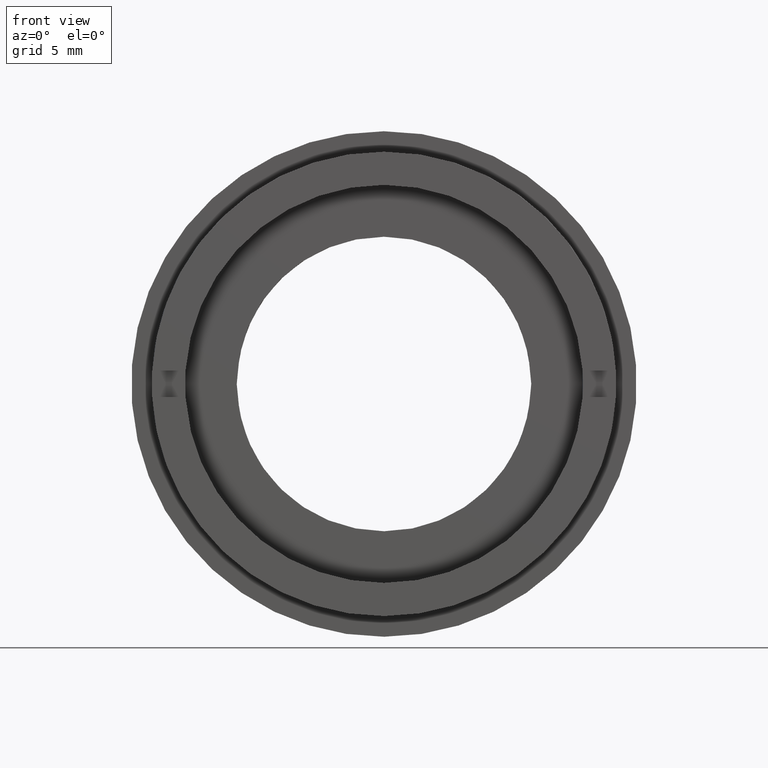
[diagram: clean part render]
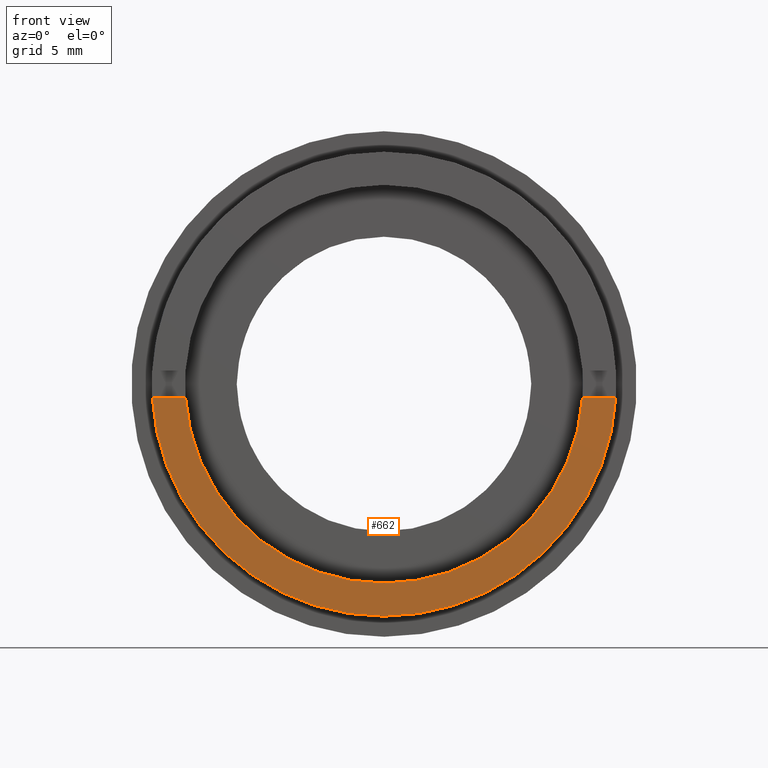
[diagram: same view with one face highlighted and labeled with its STEP entity id]
A machine part, front view. The second image highlights one B-rep face of the part: STEP entity #662.
In plain terms, the highlighted planar face has unit normal (0, -1, 0).
Its self-contained STEP definition (entity closure, byte-faithful):
#12 = VERTEX_POINT ( 'NONE', #230 ) ;
#43 = CARTESIAN_POINT ( 'NONE',  ( 0.0000000000000000000, 0.0000000000000000000, 0.0000000000000000000 ) ) ;
#60 = ORIENTED_EDGE ( 'NONE', *, *, #1094, .T. ) ;
#65 = DIRECTION ( 'NONE',  ( 0.0000000000000000000, 0.0000000000000000000, 1.000000000000000000 ) ) ;
#67 = DIRECTION ( 'NONE',  ( -0.0000000000000000000, 1.000000000000000000, -0.0000000000000000000 ) ) ;
#100 = EDGE_CURVE ( 'NONE', #502, #1331, #1271, .T. ) ;
#166 = DIRECTION ( 'NONE',  ( 1.000000000000000000, 0.0000000000000000000, 0.0000000000000000000 ) ) ;
#185 = AXIS2_PLACEMENT_3D ( 'NONE', #715, #913, #693 ) ;
#198 = CARTESIAN_POINT ( 'NONE',  ( 2.143131898507867900E-015, 0.0000000000000000000, -17.49999999999999600 ) ) ;
#211 = CIRCLE ( 'NONE', #185, 14.99999999999999600 ) ;
#230 = CARTESIAN_POINT ( 'NONE',  ( 14.96662954709576000, 0.0000000000000000000, -0.9999999999999943400 ) ) ;
#232 = ORIENTED_EDGE ( 'NONE', *, *, #893, .F. ) ;
#280 = DIRECTION ( 'NONE',  ( 0.0000000000000000000, -0.0000000000000000000, -1.000000000000000000 ) ) ;
#293 = FACE_OUTER_BOUND ( 'NONE', #791, .T. ) ;
#301 = DIRECTION ( 'NONE',  ( 0.0000000000000000000, -1.000000000000000000, 0.0000000000000000000 ) ) ;
#305 = AXIS2_PLACEMENT_3D ( 'NONE', #997, #919, #446 ) ;
#324 = CARTESIAN_POINT ( 'NONE',  ( -17.49999999999999600, 0.0000000000000000000, 0.0000000000000000000 ) ) ;
#336 = CARTESIAN_POINT ( 'NONE',  ( 1.836970198721029200E-015, 0.0000000000000000000, -14.99999999999999600 ) ) ;
#363 = CARTESIAN_POINT ( 'NONE',  ( 17.47140520965614400, 0.0000000000000000000, -1.000000000000000000 ) ) ;
#380 = CIRCLE ( 'NONE', #305, 17.49999999999999600 ) ;
#400 = PLANE ( 'NONE',  #1213 ) ;
#419 = ORIENTED_EDGE ( 'NONE', *, *, #852, .T. ) ;
#446 = DIRECTION ( 'NONE',  ( 0.0000000000000000000, 0.0000000000000000000, 1.000000000000000000 ) ) ;
#447 = CARTESIAN_POINT ( 'NONE',  ( -14.96662954709576400, 0.0000000000000000000, -0.9999999999999945600 ) ) ;
#502 = VERTEX_POINT ( 'NONE', #666 ) ;
#509 = ORIENTED_EDGE ( 'NONE', *, *, #613, .F. ) ;
#612 = CARTESIAN_POINT ( 'NONE',  ( -17.49999999999999600, 0.0000000000000000000, -1.000000000000000000 ) ) ;
#613 = EDGE_CURVE ( 'NONE', #659, #1284, #685, .T. ) ;
#630 = AXIS2_PLACEMENT_3D ( 'NONE', #43, #67, #65 ) ;
#659 = VERTEX_POINT ( 'NONE', #363 ) ;
#662 = ADVANCED_FACE ( 'NONE', ( #293 ), #400, .T. ) ;
#666 = CARTESIAN_POINT ( 'NONE',  ( -17.47140520965614400, 0.0000000000000000000, -1.000000000000000000 ) ) ;
#685 = CIRCLE ( 'NONE', #630, 17.49999999999999600 ) ;
#693 = DIRECTION ( 'NONE',  ( 0.0000000000000000000, 0.0000000000000000000, 1.000000000000000000 ) ) ;
#711 = VECTOR ( 'NONE', #1225, 1000.000000000000000 ) ;
#715 = CARTESIAN_POINT ( 'NONE',  ( 0.0000000000000000000, 0.0000000000000000000, 0.0000000000000000000 ) ) ;
#718 = AXIS2_PLACEMENT_3D ( 'NONE', #1315, #1170, #1090 ) ;
#775 = CARTESIAN_POINT ( 'NONE',  ( -17.49999999999999600, 0.0000000000000000000, -1.000000000000000000 ) ) ;
#786 = CIRCLE ( 'NONE', #718, 14.99999999999999600 ) ;
#787 = LINE ( 'NONE', #612, #711 ) ;
#791 = EDGE_LOOP ( 'NONE', ( #901, #232, #509, #972, #60, #419 ) ) ;
#802 = EDGE_CURVE ( 'NONE', #12, #659, #787, .T. ) ;
#852 = EDGE_CURVE ( 'NONE', #1186, #1331, #786, .T. ) ;
#893 = EDGE_CURVE ( 'NONE', #1284, #502, #380, .T. ) ;
#901 = ORIENTED_EDGE ( 'NONE', *, *, #100, .F. ) ;
#913 = DIRECTION ( 'NONE',  ( -0.0000000000000000000, 1.000000000000000000, -0.0000000000000000000 ) ) ;
#919 = DIRECTION ( 'NONE',  ( -0.0000000000000000000, 1.000000000000000000, -0.0000000000000000000 ) ) ;
#972 = ORIENTED_EDGE ( 'NONE', *, *, #802, .F. ) ;
#997 = CARTESIAN_POINT ( 'NONE',  ( 0.0000000000000000000, 0.0000000000000000000, 0.0000000000000000000 ) ) ;
#1090 = DIRECTION ( 'NONE',  ( 0.0000000000000000000, 0.0000000000000000000, 1.000000000000000000 ) ) ;
#1094 = EDGE_CURVE ( 'NONE', #12, #1186, #211, .T. ) ;
#1166 = VECTOR ( 'NONE', #166, 1000.000000000000000 ) ;
#1170 = DIRECTION ( 'NONE',  ( -0.0000000000000000000, 1.000000000000000000, -0.0000000000000000000 ) ) ;
#1186 = VERTEX_POINT ( 'NONE', #336 ) ;
#1213 = AXIS2_PLACEMENT_3D ( 'NONE', #324, #301, #280 ) ;
#1225 = DIRECTION ( 'NONE',  ( 1.000000000000000000, 0.0000000000000000000, 0.0000000000000000000 ) ) ;
#1271 = LINE ( 'NONE', #775, #1166 ) ;
#1284 = VERTEX_POINT ( 'NONE', #198 ) ;
#1315 = CARTESIAN_POINT ( 'NONE',  ( 0.0000000000000000000, 0.0000000000000000000, 0.0000000000000000000 ) ) ;
#1331 = VERTEX_POINT ( 'NONE', #447 ) ;